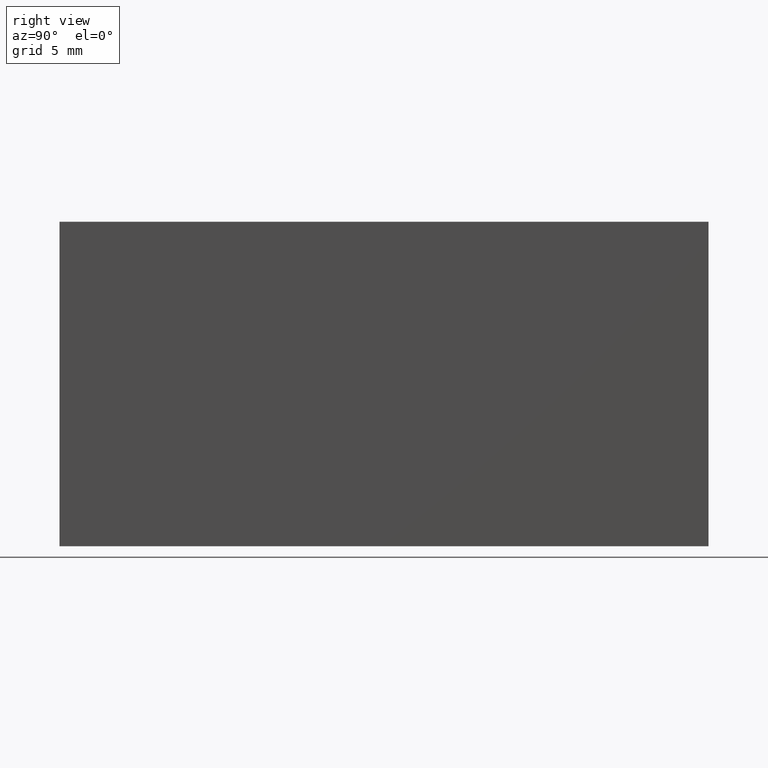
[diagram: clean part render]
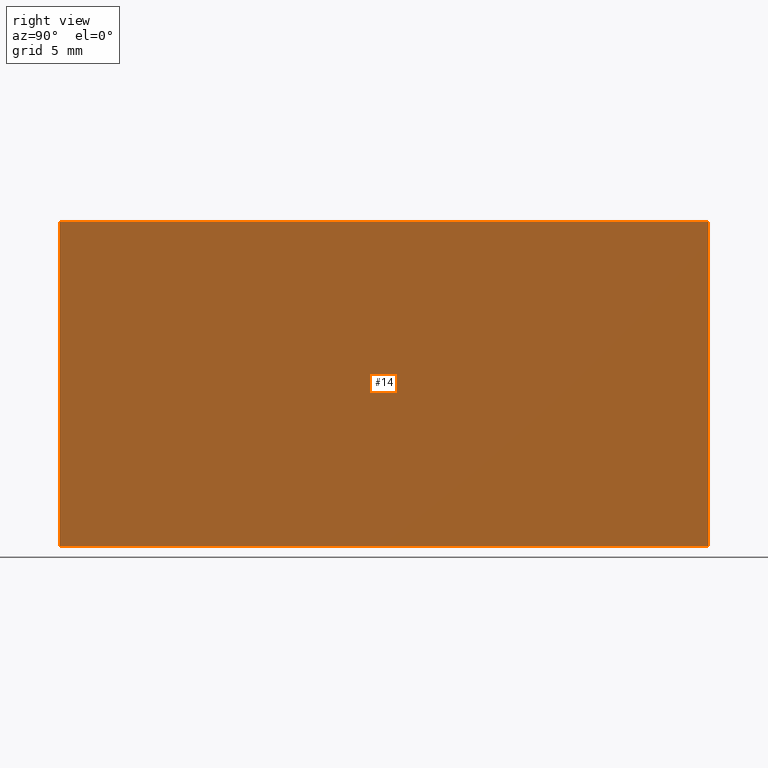
[diagram: same view with one face highlighted and labeled with its STEP entity id]
A machine part, right view. The second image highlights one B-rep face of the part: STEP entity #14.
In plain terms, the highlighted planar face has unit normal (-1, 0, 0).
Its self-contained STEP definition (entity closure, byte-faithful):
#1 = EDGE_LOOP ( 'NONE', ( #110, #25, #150, #64 ) ) ;
#3 = CARTESIAN_POINT ( 'NONE',  ( -5.454795665148731500, 40.00000000000000000, 10.00000000000000000 ) ) ;
#6 = EDGE_CURVE ( 'NONE', #167, #100, #8, .T. ) ;
#8 = LINE ( 'NONE', #145, #83 ) ;
#9 = DIRECTION ( 'NONE',  ( -0.0000000000000000000, -1.000000000000000000, -0.0000000000000000000 ) ) ;
#14 = ADVANCED_FACE ( 'NONE', ( #113 ), #90, .F. ) ;
#20 = EDGE_CURVE ( 'NONE', #117, #167, #108, .T. ) ;
#22 = CARTESIAN_POINT ( 'NONE',  ( -5.454795665148737700, 40.00000000000000000, -10.00000000000000000 ) ) ;
#25 = ORIENTED_EDGE ( 'NONE', *, *, #6, .F. ) ;
#26 = VECTOR ( 'NONE', #63, 1000.000000000000000 ) ;
#28 = AXIS2_PLACEMENT_3D ( 'NONE', #54, #179, #59 ) ;
#54 = CARTESIAN_POINT ( 'NONE',  ( -5.454795665148737700, 40.00000000000000000, -10.00000000000000000 ) ) ;
#57 = CARTESIAN_POINT ( 'NONE',  ( -5.454795665148737700, 0.0000000000000000000, -10.00000000000000000 ) ) ;
#59 = DIRECTION ( 'NONE',  ( 3.035766082959412400E-016, 0.0000000000000000000, 1.000000000000000000 ) ) ;
#60 = EDGE_CURVE ( 'NONE', #169, #100, #138, .T. ) ;
#63 = DIRECTION ( 'NONE',  ( -3.035766082959412400E-016, -0.0000000000000000000, -1.000000000000000000 ) ) ;
#64 = ORIENTED_EDGE ( 'NONE', *, *, #104, .T. ) ;
#83 = VECTOR ( 'NONE', #9, 1000.000000000000000 ) ;
#90 = PLANE ( 'NONE',  #28 ) ;
#96 = CARTESIAN_POINT ( 'NONE',  ( -5.454795665148737700, 0.0000000000000000000, -10.00000000000000000 ) ) ;
#100 = VERTEX_POINT ( 'NONE', #57 ) ;
#104 = EDGE_CURVE ( 'NONE', #117, #169, #191, .T. ) ;
#108 = LINE ( 'NONE', #22, #194 ) ;
#110 = ORIENTED_EDGE ( 'NONE', *, *, #60, .T. ) ;
#113 = FACE_OUTER_BOUND ( 'NONE', #1, .T. ) ;
#114 = VECTOR ( 'NONE', #165, 1000.000000000000000 ) ;
#117 = VERTEX_POINT ( 'NONE', #175 ) ;
#121 = DIRECTION ( 'NONE',  ( -3.035766082959412400E-016, -0.0000000000000000000, -1.000000000000000000 ) ) ;
#138 = LINE ( 'NONE', #96, #26 ) ;
#145 = CARTESIAN_POINT ( 'NONE',  ( -5.454795665148737700, 40.00000000000000000, -10.00000000000000000 ) ) ;
#150 = ORIENTED_EDGE ( 'NONE', *, *, #20, .F. ) ;
#159 = CARTESIAN_POINT ( 'NONE',  ( -5.454795665148737700, 40.00000000000000000, -10.00000000000000000 ) ) ;
#165 = DIRECTION ( 'NONE',  ( -0.0000000000000000000, -1.000000000000000000, -0.0000000000000000000 ) ) ;
#167 = VERTEX_POINT ( 'NONE', #159 ) ;
#169 = VERTEX_POINT ( 'NONE', #174 ) ;
#174 = CARTESIAN_POINT ( 'NONE',  ( -5.454795665148731500, 0.0000000000000000000, 10.00000000000000000 ) ) ;
#175 = CARTESIAN_POINT ( 'NONE',  ( -5.454795665148731500, 40.00000000000000000, 10.00000000000000000 ) ) ;
#179 = DIRECTION ( 'NONE',  ( -1.000000000000000000, 0.0000000000000000000, 3.035766082959412400E-016 ) ) ;
#191 = LINE ( 'NONE', #3, #114 ) ;
#194 = VECTOR ( 'NONE', #121, 1000.000000000000000 ) ;